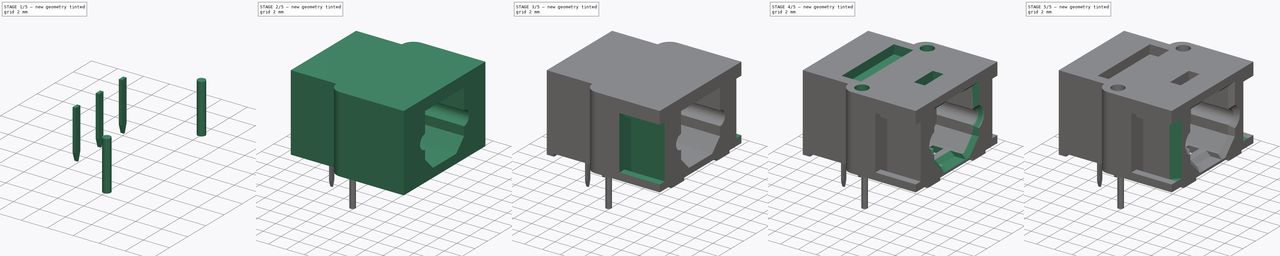
[diagram: build sequence overview — one tinted view per stage of 5, left to right]
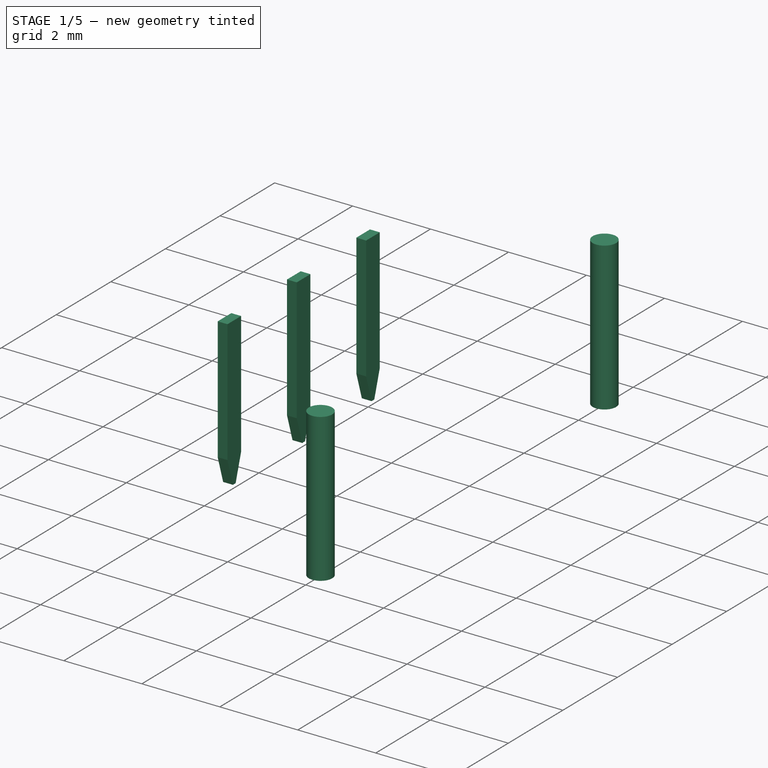
[diagram: stage 1 of 5 — iso view after this stage's code; geometry added in this stage tinted green]
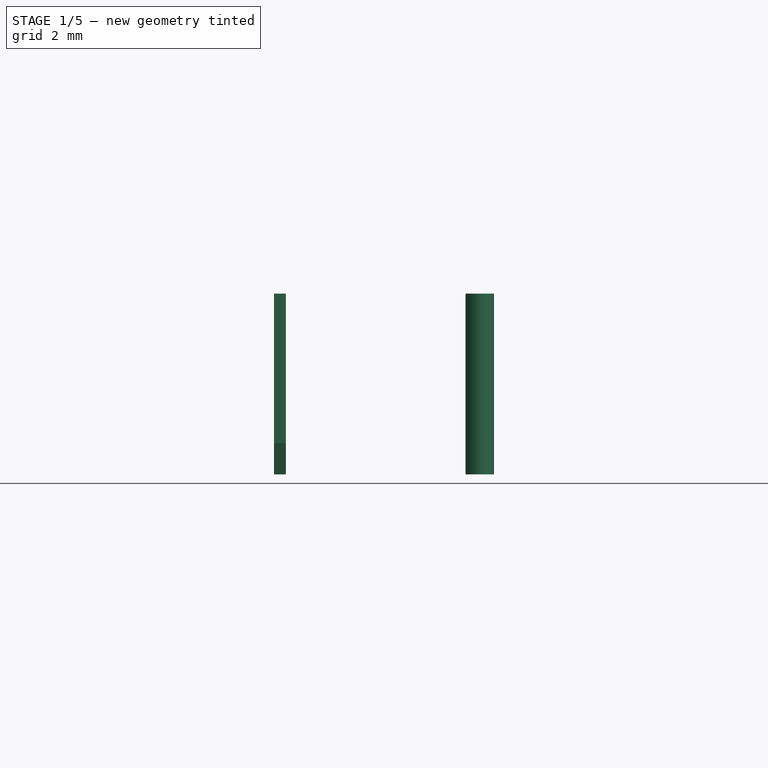
[diagram: stage 1 of 5 — front view after this stage's code; geometry added in this stage tinted green]
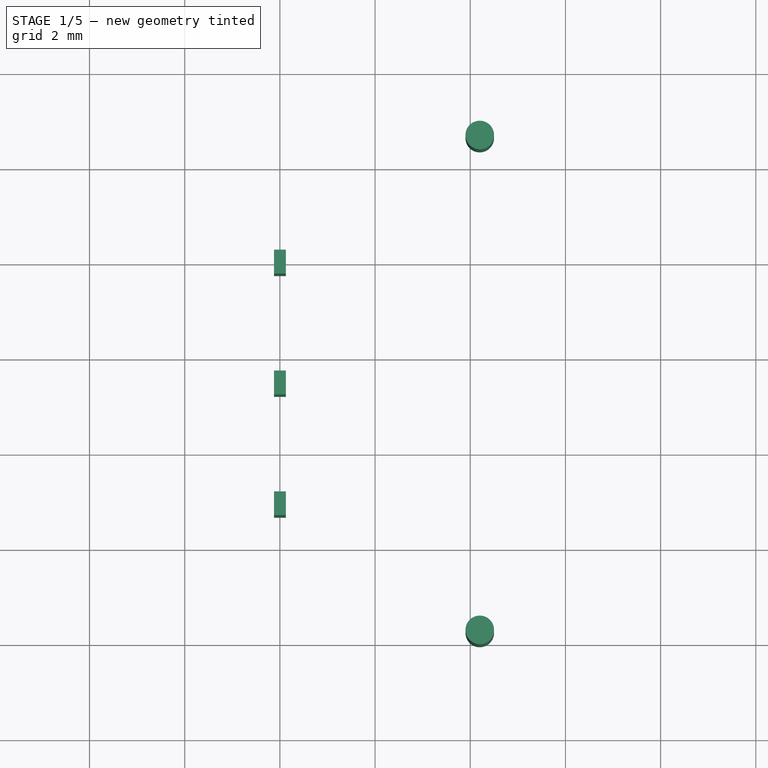
[diagram: stage 1 of 5 — top view after this stage's code; geometry added in this stage tinted green]
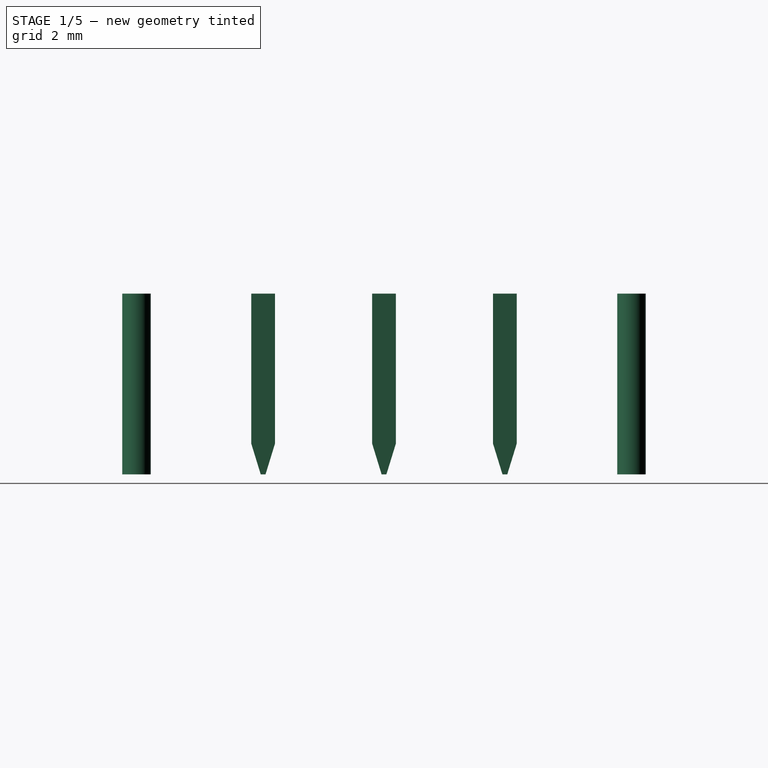
[diagram: stage 1 of 5 — right view after this stage's code; geometry added in this stage tinted green]
FCSTD DOCUMENT  (FreeCAD 1.0R38641 +468 (Git))
Label: TOTX1350-1
License: All rights reserved
objects: Sketcher::SketchObject×14, PartDesign::Pocket×10, PartDesign::Chamfer×5, PartDesign::Pad×4, PartDesign::Body×3, PartDesign::Plane×2, PartDesign::Line×2, Part::FeaturePython×2, Spreadsheet::Sheet×1, Part::Compound×1
note: 95 computed .brp shape members not serialized (recipe doc carries the construction recipe); baked Part::Feature solids carry a one-line shape summary decoded from their .brp

FEATURE [PartDesign::Body] Body
  AllowCompound = false
  Group = -> [DatumPlane,DatumPlane001,DatumLine,DatumLine001,Sketch001,Pad,Sketch002,Pocket,Sketch,Pad001,Sketch003,Pocket001,Sketch005,Pocket002,Sketch006,Pocket003,Sketch007,Pocket004,Sketch008,Pocket005,Sketch009,Pocket006,Sketch010,Pocket007,Sketch011,Pocket008,Sketch015,Pocket009,Chamfer,Chamfer001,Chamfer002,Chamfer003,Chamfer004]
  Origin = -> Origin
  Tip = -> Chamfer004
FEATURE [Sketcher::SketchObject] Sketch016
  ArcFitTolerance = 0
  AttachmentSupport = -> [YZ_Plane001]
  FullyConstrained = true
  MakeInternals = false
  MapMode = 2
  Placement = pos=(0,0,0) rot=(0.57735,0.57735,0.57735;2.0944rad)
  expr: Constraints[14] = <<Master>>.standoff
  sketch-geometry (7):
    g0: LineSegment StartX=-0.25 StartY=0.3 StartZ=0 EndX=-0.25 EndY=-2.85 EndZ=0
    g1: LineSegment StartX=-0.25 StartY=-2.85 StartZ=0 EndX=-0.05 EndY=-3.5 EndZ=0
    g2: LineSegment StartX=-0.05 StartY=-3.5 StartZ=0 EndX=0.05 EndY=-3.5 EndZ=0
    g3: LineSegment StartX=0.05 StartY=-3.5 StartZ=0 EndX=0.25 EndY=-2.85 EndZ=0
    g4: LineSegment StartX=0.25 StartY=-2.85 StartZ=0 EndX=0.25 EndY=0.3 EndZ=0
    g5: LineSegment StartX=0.25 StartY=0.3 StartZ=0 EndX=-0.25 EndY=0.3 EndZ=0
    g6: LineSegment [constr] StartX=-0.25 StartY=-2.85 StartZ=0 EndX=0.25 EndY=-2.85 EndZ=0
  constraints (19):
    c: Vertical(g0)
    c: Coincident(g0,g1)
    c: Coincident(g2,g3)
    c: Coincident(g3,g4)
    c: Vertical(g4)
    c: Coincident(g4,g5)
    c: Coincident(g5,g0)
    c: Coincident(g2,g1)
    c: Horizontal(g2)
    c: Equal(g3,g1)
    c: Symmetric(g4,g0,g-2)
    c: Coincident(g6,g0)
    c: Coincident(g6,g3)
    c: Horizontal(g6)
    c: DistanceY(g-1,g4) = 0.3
    c: DistanceY(g2,g-1) = 3.5
    c: DistanceX(g5,g5) = 0.5
    c: DistanceY(g2,g3) = 0.65
    c: DistanceX(g0,g1) = 0.2
FEATURE [PartDesign::Pad] Pad002
  Direction = (1,0,0)
  Length = 0.25
  Length2 = 10
  Midplane = true
  Placement = pos=(0,0,0) rot=(1,1,1;2.0944rad)
  Profile = -> Sketch016
  ReferenceAxis = -> Sketch016 [N_Axis]
  Suppressed = false
  Type = 0
FEATURE [PartDesign::Body] Body001
  AllowCompound = false
  Group = -> [Sketch016,Pad002]
  Origin = -> Origin001
  Tip = -> Pad002
FEATURE [Sketcher::SketchObject] Sketch017
  ArcFitTolerance = 0
  AttachmentSupport = -> [XY_Plane002]
  FullyConstrained = true
  MakeInternals = false
  MapMode = 5
  sketch-geometry (1):
    g0: Circle CenterX=0 CenterY=0 CenterZ=0 NormalX=0 NormalY=0 NormalZ=1 AngleXU=0 Radius=0.3
  constraints (2):
    c: Coincident(g0,g-1)
    c: Diameter(g0) = 0.6
FEATURE [PartDesign::Pad] Pad003
  Direction = (0,0,1)
  Length = 0.3
  Length2 = 3.5
  Profile = -> Sketch017
  ReferenceAxis = -> Sketch017 [N_Axis]
  Suppressed = false
  Type = 4
  expr: Length = <<Master>>.standoff
FEATURE [PartDesign::Body] Body002
  AllowCompound = false
  Group = -> [Sketch017,Pad003]
  Origin = -> Origin002
  Tip = -> Pad003
FEATURE [Part::FeaturePython] Array  # Draft array (typed FeaturePython)
  Angle = 360
  ArrayType = 0
  Axis = (0,0,1)
  Base = -> Body001
  Center = (0,0,0)
  Count = 3
  Fuse = false
  IntervalAxis = (0,0,0)
  IntervalX = (100,0,0)
  IntervalY = (0,-2.54,0)
  IntervalZ = (0,0,100)
  NumberCircles = 3
  NumberPolar = 5
  NumberX = 1
  NumberY = 3
  NumberZ = 1
  RadialDistance = 50
  Symmetry = 1
  TangentialDistance = 25
  expr: .IntervalY.y = -<<Master>>.pin_pitch
FEATURE [Part::FeaturePython] Array001  # Draft array (typed FeaturePython)
  Angle = 360
  ArrayType = 0
  Axis = (0,0,1)
  Base = -> Body002
  Center = (0,0,0)
  Count = 2
  Fuse = false
  IntervalAxis = (0,0,0)
  IntervalX = (100,0,0)
  IntervalY = (0,-10.4,0)
  IntervalZ = (0,0,100)
  NumberCircles = 3
  NumberPolar = 5
  NumberX = 1
  NumberY = 2
  NumberZ = 1
  Placement = pos=(4.2,2.66,0) rot=(0,0,1;0rad)
  RadialDistance = 50
  Symmetry = 1
  TangentialDistance = 25
  expr: .IntervalY.y = -<<Master>>.width_back
  expr: .Placement.Base.y = -<<Master>>.center_offset + <<Master>>.width_back / 2
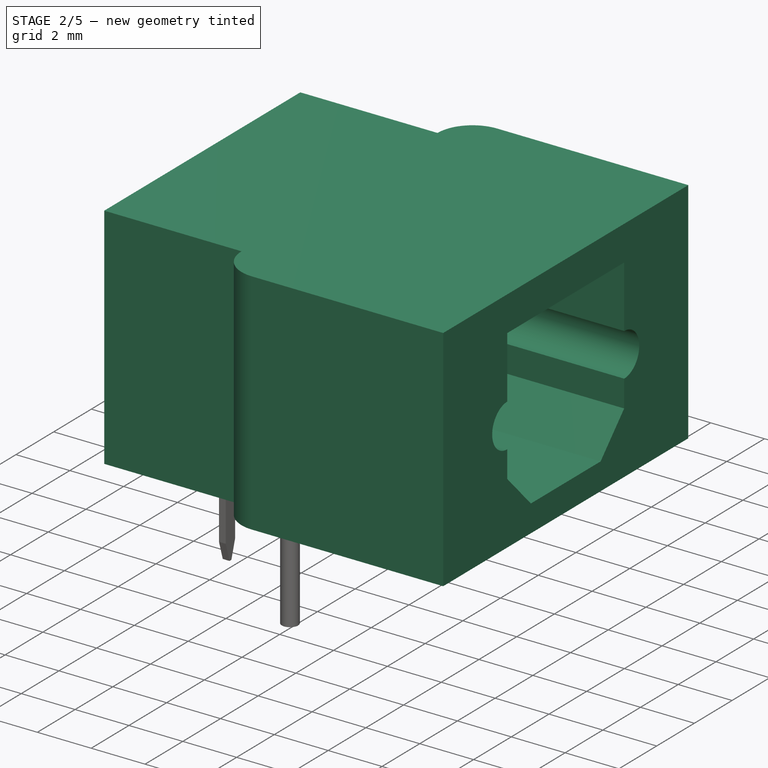
[diagram: stage 2 of 5 — iso view after this stage's code; geometry added in this stage tinted green]
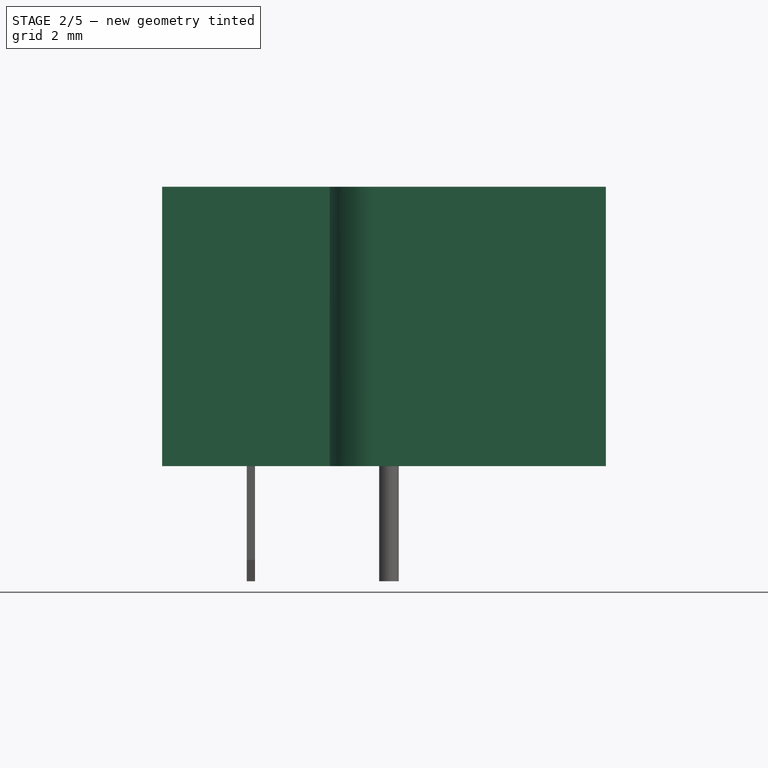
[diagram: stage 2 of 5 — front view after this stage's code; geometry added in this stage tinted green]
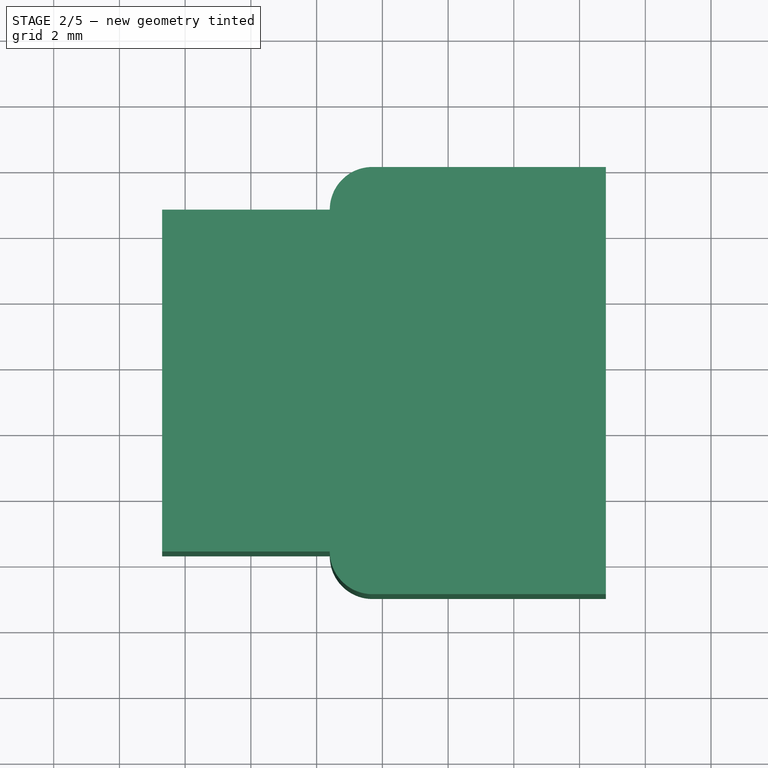
[diagram: stage 2 of 5 — top view after this stage's code; geometry added in this stage tinted green]
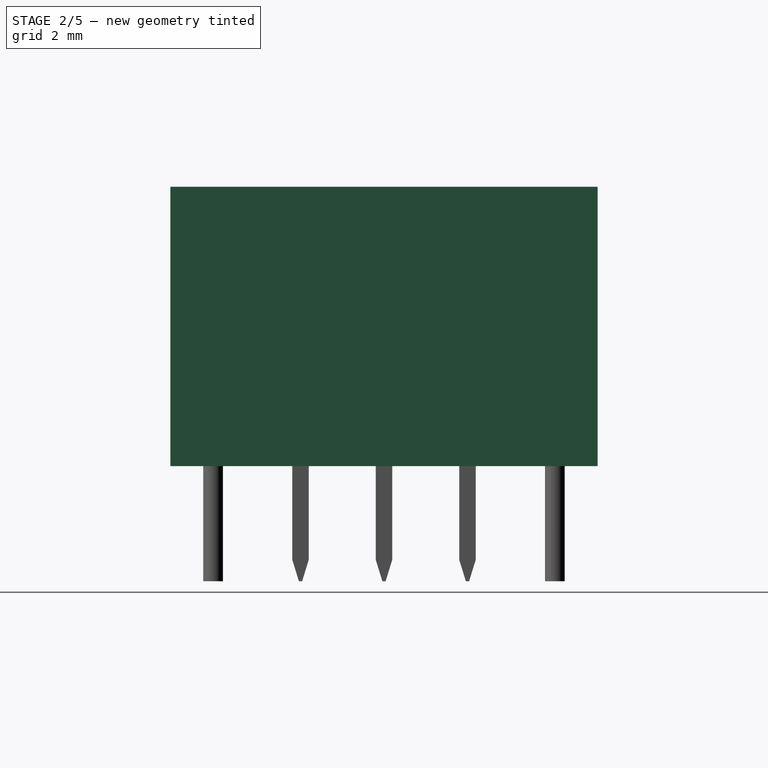
[diagram: stage 2 of 5 — right view after this stage's code; geometry added in this stage tinted green]
FEATURE [Spreadsheet::Sheet] Spreadsheet  label="Master"
  cells = A1='Constants; A2='length; B2(length)==13.5 mm; D2='Total length of part; A3='width front; B3(width_front)==13 mm; D3='Width of front part; A4='length back; B4(length_back)==5.1 mm; D4='Length of back section of part; A5='width back; B5(width_back)==10.4 mm; D5='Width of rear part; A6='height; B6(height)==8.5 mm; D6='Height of housing; A7='sandoff; B7(standoff)==0.3 mm; D7='Pin offset from front edge; A8='pin pitch; B8(pin_pitch)==2.54 mm; D8='Pin pitch; A10='Calculated; A11='center; B11(center_h)==(height - standoff) / 2; C11(center_offset)==pin_pitch; D11='Center of axis of front features; A12='offset front/back; B12(offset_front)==10.8 mm; C12(offset_back)==length - offset_front; D12='Offset to front and back relitive to origin
FEATURE [PartDesign::Plane] DatumPlane  label="DatumPlane_front"
  AttachmentOffset = pos=(0,0,10.8) rot=(0,0,1;0rad)
  AttachmentSupport = -> [YZ_Plane]
  Length = 60
  MapMode = 5
  Placement = pos=(10.8,0,0) rot=(0.57735,0.57735,0.57735;2.0944rad)
  ResizeMode = 0
  Width = 60
  expr: .AttachmentOffset.Base.z = <<Master>>.offset_front
FEATURE [PartDesign::Plane] DatumPlane001  label="DatumPlane_top"
  AttachmentOffset = pos=(0,0,8.5) rot=(0,0,1;0rad)
  AttachmentSupport = -> [XY_Plane]
  Length = 60
  MapMode = 5
  Placement = pos=(0,0,8.5) rot=(0,0,1;0rad)
  ResizeMode = 0
  Width = 60
  expr: .AttachmentOffset.Base.z = <<Master>>.height
FEATURE [PartDesign::Line] DatumLine
  AttacherType = Attacher::AttachEngineLine
  AttachmentOffset = pos=(-2.54,4.1,0) rot=(0,0,1;0rad)
  AttachmentSupport = -> [X_Axis]
  Length = 20
  MapMode = 29
  Placement = pos=(0,-2.54,4.1) rot=(0.57735,0.57735,0.57735;2.0944rad)
  ResizeMode = 0
  expr: .AttachmentOffset.Base.x = -<<Master>>.center_offset
  expr: .AttachmentOffset.Base.y = <<Master>>.center_h
FEATURE [PartDesign::Line] DatumLine001
  AttacherType = Attacher::AttachEngineLine
  AttachmentOffset = pos=(4.05,-2.54,0) rot=(0,0,1;0rad)
  AttachmentSupport = -> [Z_Axis]
  Length = 20
  MapMode = 29
  Placement = pos=(4.05,-2.54,0) rot=(0,0,1;0rad)
  ResizeMode = 0
  expr: .AttachmentOffset.Base.x = <<Master>>.length / 2 - <<Master>>.offset_back
  expr: .AttachmentOffset.Base.y = -<<Master>>.center_offset
FEATURE [Sketcher::SketchObject] Sketch001
  ArcFitTolerance = 0
  AttachmentSupport = -> [XY_Plane]
  ExternalGeometry = -> [DatumLine001]
  FullyConstrained = true
  MakeInternals = false
  MapMode = 5
  expr: Constraints[21] = <<Master>>.length
  expr: Constraints[22] = <<Master>>.width_front
  expr: Constraints[23] = <<Master>>.width_back
  expr: Constraints[24] = <<Master>>.length_back
  sketch-geometry (12):
    g0: LineSegment StartX=-2.7 StartY=2.66 StartZ=0 EndX=-2.7 EndY=-7.74 EndZ=0
    g1: LineSegment StartX=-2.7 StartY=-7.74 StartZ=0 EndX=2.4 EndY=-7.74 EndZ=0
    g2: LineSegment StartX=3.7 StartY=-9.04 StartZ=0 EndX=10.8 EndY=-9.04 EndZ=0
    g3: LineSegment StartX=10.8 StartY=-9.04 StartZ=0 EndX=10.8 EndY=3.96 EndZ=0
    g4: LineSegment StartX=10.8 StartY=3.96 StartZ=0 EndX=3.7 EndY=3.96 EndZ=0
    g5: LineSegment StartX=2.4 StartY=2.66 StartZ=0 EndX=-2.7 EndY=2.66 EndZ=0
    g6: ArcOfCircle CenterX=3.7 CenterY=2.66 CenterZ=0 NormalX=0 NormalY=0 NormalZ=1 AngleXU=0 Radius=1.3 StartAngle=1.5708 EndAngle=3.14159
    g7: ArcOfCircle CenterX=3.7 CenterY=-7.74 CenterZ=0 NormalX=0 NormalY=0 NormalZ=1 AngleXU=0 Radius=1.3 StartAngle=3.14159 EndAngle=4.71239
    g8: LineSegment [constr] StartX=2.4 StartY=2.66 StartZ=0 EndX=3.7 EndY=2.66 EndZ=0
    g9: LineSegment [constr] StartX=3.7 StartY=-7.74 StartZ=0 EndX=2.4 EndY=-7.74 EndZ=0
    g10: LineSegment [constr] StartX=4.05 StartY=-2.54 StartZ=0 EndX=10.8 EndY=-2.54 EndZ=0
    g11: LineSegment [constr] StartX=4.05 StartY=-2.54 StartZ=0 EndX=-2.7 EndY=-2.54 EndZ=0
  constraints (33):
    c: Vertical(g0)
    c: Coincident(g0,g1)
    c: Coincident(g2,g3)
    c: Vertical(g3)
    c: Coincident(g3,g4)
    c: Horizontal(g4)
    c: Coincident(g5,g0)
    c: Horizontal(g5)
    c: Horizontal(g1)
    c: Horizontal(g2)
    c: Coincident(g6,g5)
    c: Coincident(g7,g1)
    c: Coincident(g8,g5)
    c: Coincident(g8,g6)
    c: Coincident(g9,g7)
    c: Coincident(g9,g1)
    c: Horizontal(g8)
    c: Horizontal(g9)
    c: Tangent(g7,g2) = -1.5708
    c: Tangent(g6,g4) = -1.5708
    c: Equal(g7,g6)
    c: DistanceX(g0,g3) = 13.5
    c: DistanceY(g3,g3) = 13
    c: DistanceY(g0,g0) = 10.4
    c: DistanceX(g5,g5) = 5.1
    c: Equal(g5,g1)
    c: Coincident(g10,g-3)
    c: Horizontal(g10)
    c: Symmetric(g3,g2,g10)
    c: Coincident(g11,g10)
    c: PointOnObject(g11,g0)
    c: Horizontal(g11)
    c: Equal(g11,g10)
FEATURE [PartDesign::Pad] Pad
  Direction = (0,0,1)
  Length = 8.5
  Length2 = 10
  Profile = -> Sketch001
  ReferenceAxis = -> Sketch001 [N_Axis]
  Suppressed = false
  Type = 0
  expr: Length = <<Master>>.height
FEATURE [Sketcher::SketchObject] Sketch002
  ArcFitTolerance = 0
  AttachmentSupport = -> [DatumPlane]
  ExternalGeometry = -> [DatumLine]
  FullyConstrained = true
  MakeInternals = false
  MapMode = 2
  Placement = pos=(10.8,0,0) rot=(0.57735,0.57735,0.57735;2.0944rad)
  sketch-geometry (14):
    g0: LineSegment StartX=-5.64 StartY=7.2 StartZ=0 EndX=0.56 EndY=7.2 EndZ=0
    g1: LineSegment StartX=0.56 StartY=7.2 StartZ=0 EndX=0.56 EndY=4.9 EndZ=0
    g2: LineSegment StartX=0.56 StartY=2.3 StartZ=0 EndX=-0.69 EndY=1 EndZ=0
    g3: LineSegment StartX=-0.69 StartY=1 StartZ=0 EndX=-4.39 EndY=1 EndZ=0
    g4: LineSegment StartX=-4.39 StartY=1 StartZ=0 EndX=-5.64 EndY=2.3 EndZ=0
    g5: LineSegment StartX=-5.64 StartY=2.3 StartZ=0 EndX=-5.64 EndY=3.3 EndZ=0
    g6: ArcOfCircle CenterX=-5.64 CenterY=4.1 CenterZ=0 NormalX=0 NormalY=0 NormalZ=1 AngleXU=0 Radius=0.8 StartAngle=1.5708 EndAngle=4.71239
    g7: ArcOfCircle CenterX=0.56 CenterY=4.1 CenterZ=0 NormalX=0 NormalY=0 NormalZ=1 AngleXU=0 Radius=0.8 StartAngle=4.71239 EndAngle=7.85398
    g8: LineSegment StartX=-5.64 StartY=4.9 StartZ=0 EndX=-5.64 EndY=7.2 EndZ=0
    g9: LineSegment StartX=0.56 StartY=3.3 StartZ=0 EndX=0.56 EndY=2.3 EndZ=0
    g10: LineSegment [constr] StartX=-5.64 StartY=4.1 StartZ=0 EndX=0.56 EndY=4.1 EndZ=0
    g11: LineSegment [constr] StartX=-5.64 StartY=4.9 StartZ=0 EndX=-5.64 EndY=3.3 EndZ=0
    g12: LineSegment [constr] StartX=0.56 StartY=4.9 StartZ=0 EndX=0.56 EndY=3.3 EndZ=0
    g13: LineSegment [constr] StartX=-2.54 StartY=7.2 StartZ=0 EndX=-2.54 EndY=1 EndZ=0
  constraints (40):
    c: Horizontal(g0)
    c: Vertical(g1)
    c: Coincident(g9,g2)
    c: Coincident(g2,g3)
    c: Horizontal(g3)
    c: Coincident(g3,g4)
    c: Coincident(g4,g5)
    c: Coincident(g8,g0)
    c: Vertical(g5)
    c: Coincident(g5,g6)
    c: Coincident(g8,g6)
    c: Coincident(g9,g7)
    c: Vertical(g9)
    c: Equal(g6,g7)
    c: Coincident(g10,g6)
    c: Coincident(g10,g7)
    c: Vertical(g8)
    c: Coincident(g1,g7)
    c: Coincident(g11,g6)
    c: Coincident(g11,g5)
    c: Vertical(g11)
    c: PointOnObject(g6,g11)
    c: Coincident(g12,g1)
    c: Coincident(g12,g7)
    c: Vertical(g12)
    c: PointOnObject(g7,g12)
    c: Equal(g8,g1)
    c: Equal(g5,g9)
    c: Equal(g4,g2)
    c: DistanceX(g0,g0) = 6.2
    c: DistanceX(g3,g3) = 3.7
    c: DistanceY(g9,g9) = 1
    c: Coincident(g1,g0)
    c: DistanceY(g1,g1) = 2.3
    c: Symmetric(g6,g7,g-3)
    c: PointOnObject(g13,g0)
    c: PointOnObject(g13,g3)
    c: Vertical(g13)
    c: Symmetric(g13,g13,g-3)
    c: Equal(g13,g0)
FEATURE [PartDesign::Pocket] Pocket
  BaseFeature = -> Pad
  Direction = (-1,0,0)
  Length = 6.9
  Length2 = 5
  Profile = -> Sketch002
  ReferenceAxis = -> Sketch002 [N_Axis]
  Suppressed = false
  Type = 0
FEATURE [Sketcher::SketchObject] Sketch
  ArcFitTolerance = 1e-06
  AttachmentSupport = -> [YZ_Plane]
  ExternalGeometry = -> [DatumLine]
  FullyConstrained = true
  MakeInternals = false
  MapMode = 5
  Placement = pos=(0,0,0) rot=(0.57735,0.57735,0.57735;2.0944rad)
  sketch-geometry (10):
    g0: LineSegment StartX=-4.64 StartY=6.2 StartZ=0 EndX=-0.44 EndY=6.2 EndZ=0
    g1: LineSegment StartX=-0.44 StartY=6.2 StartZ=0 EndX=-0.44 EndY=3.1 EndZ=0
    g2: LineSegment StartX=-0.44 StartY=3.1 StartZ=0 EndX=-1.54 EndY=2 EndZ=0
    g3: LineSegment StartX=-1.54 StartY=2 StartZ=0 EndX=-3.54 EndY=2 EndZ=0
    g4: LineSegment StartX=-3.54 StartY=2 StartZ=0 EndX=-4.64 EndY=3.1 EndZ=0
    g5: LineSegment StartX=-4.64 StartY=3.1 StartZ=0 EndX=-4.64 EndY=6.2 EndZ=0
    g6: LineSegment [constr] StartX=-4.64 StartY=3.1 StartZ=0 EndX=-4.64 EndY=2 EndZ=0
    g7: LineSegment [constr] StartX=-4.64 StartY=2 StartZ=0 EndX=-3.54 EndY=2 EndZ=0
    g8: LineSegment [constr] StartX=-1.54 StartY=2 StartZ=0 EndX=-0.44 EndY=2 EndZ=0
    g9: LineSegment [constr] StartX=-0.44 StartY=3.1 StartZ=0 EndX=-0.44 EndY=2 EndZ=0
  constraints (27):
    c: Horizontal(g0)
    c: Coincident(g0,g1)
    c: Coincident(g1,g2)
    c: Coincident(g2,g3)
    c: Horizontal(g3)
    c: Coincident(g3,g4)
    c: Coincident(g4,g5)
    c: Coincident(g5,g0)
    c: Vertical(g5)
    c: Vertical(g1)
    c: Coincident(g6,g4)
    c: Vertical(g6)
    c: Coincident(g7,g6)
    c: Horizontal(g7)
    c: Coincident(g8,g2)
    c: Coincident(g9,g1)
    c: Coincident(g9,g8)
    c: Vertical(g9)
    c: Coincident(g7,g3)
    c: Horizontal(g8)
    c: DistanceX(g0,g0) = 4.2
    c: DistanceY(g1,g1) = 3.1
    c: DistanceX(g3,g3) = 2
    c: Equal(g1,g5)
    c: Equal(g4,g2)
    c: DistanceY(g6,g0) = 4.2
    c: Symmetric(g6,g0,g-3)
FEATURE [PartDesign::Pad] Pad001
  BaseFeature = -> Pocket
  Direction = (1,0,0)
  Length = 7.1
  Length2 = 10
  Profile = -> Sketch
  ReferenceAxis = -> Sketch [N_Axis]
  Suppressed = false
  Type = 0
FEATURE [Sketcher::SketchObject] Sketch003
  ArcFitTolerance = 1e-06
  AttachmentSupport = -> [DatumPlane]
  ExternalGeometry = -> [DatumLine]
  FullyConstrained = true
  MakeInternals = false
  MapMode = 5
  Placement = pos=(10.8,0,0) rot=(0.57735,0.57735,0.57735;2.0944rad)
  sketch-geometry (1):
    g0: Circle CenterX=-2.54 CenterY=4.1 CenterZ=0 NormalX=0 NormalY=0 NormalZ=1 AngleXU=0 Radius=1.25
  constraints (2):
    c: Coincident(g0,g-3)
    c: Radius(g0) = 1.25
FEATURE [PartDesign::Pocket] Pocket001
  BaseFeature = -> Pad001
  Direction = (-1,0,0)
  Length = 12.2
  Length2 = 5
  Profile = -> Sketch003
  ReferenceAxis = -> Sketch003 [N_Axis]
  Suppressed = false
  Type = 0
FEATURE [Part::Compound] Compound  label="Pins"
  Links = -> [Array,Array001]
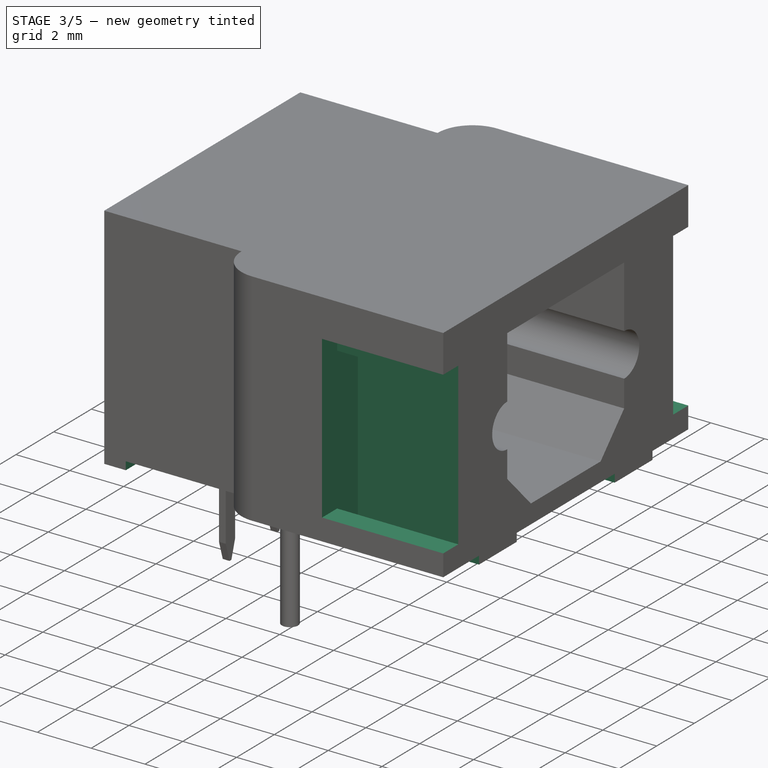
[diagram: stage 3 of 5 — iso view after this stage's code; geometry added in this stage tinted green]
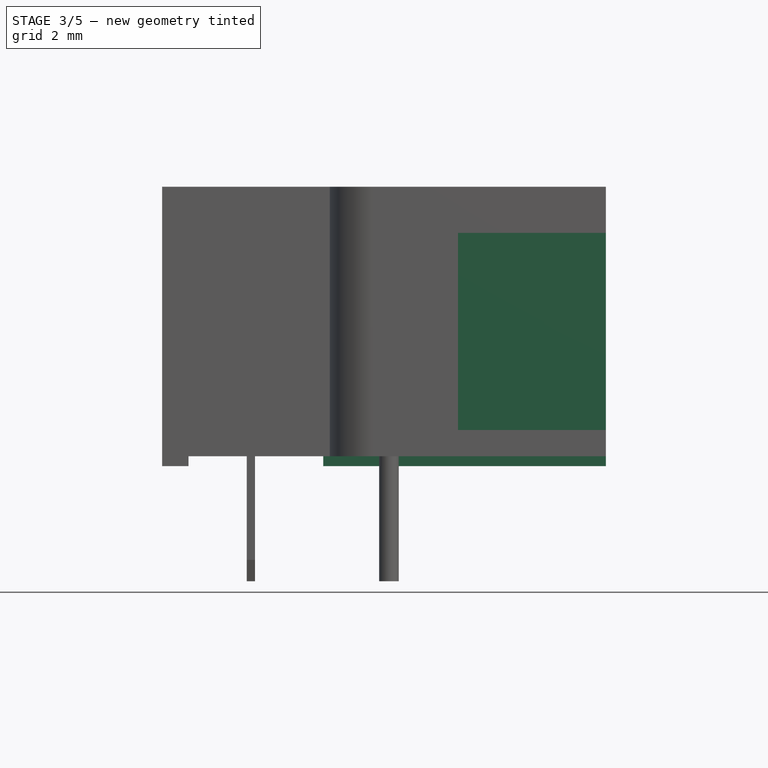
[diagram: stage 3 of 5 — front view after this stage's code; geometry added in this stage tinted green]
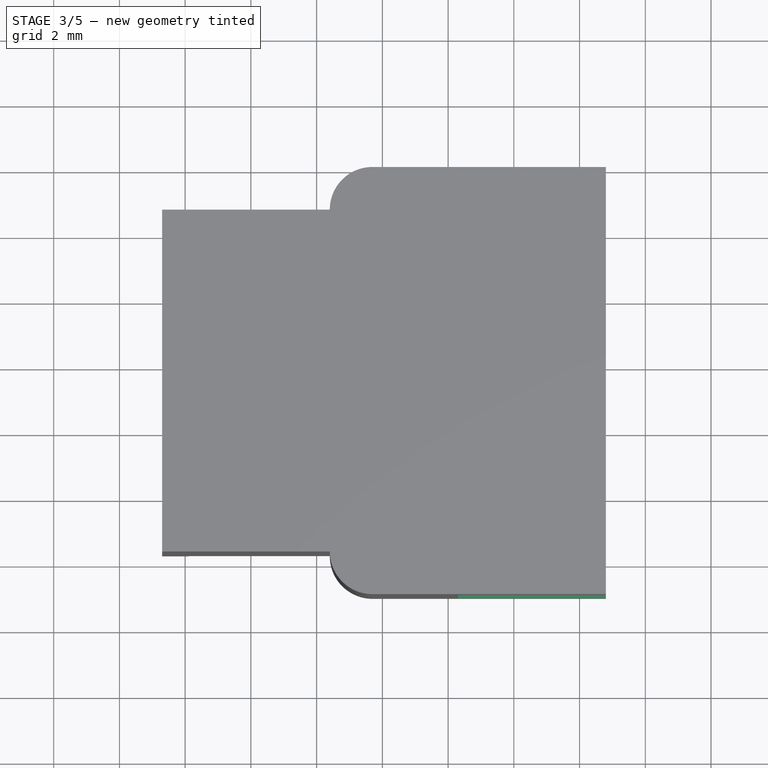
[diagram: stage 3 of 5 — top view after this stage's code; geometry added in this stage tinted green]
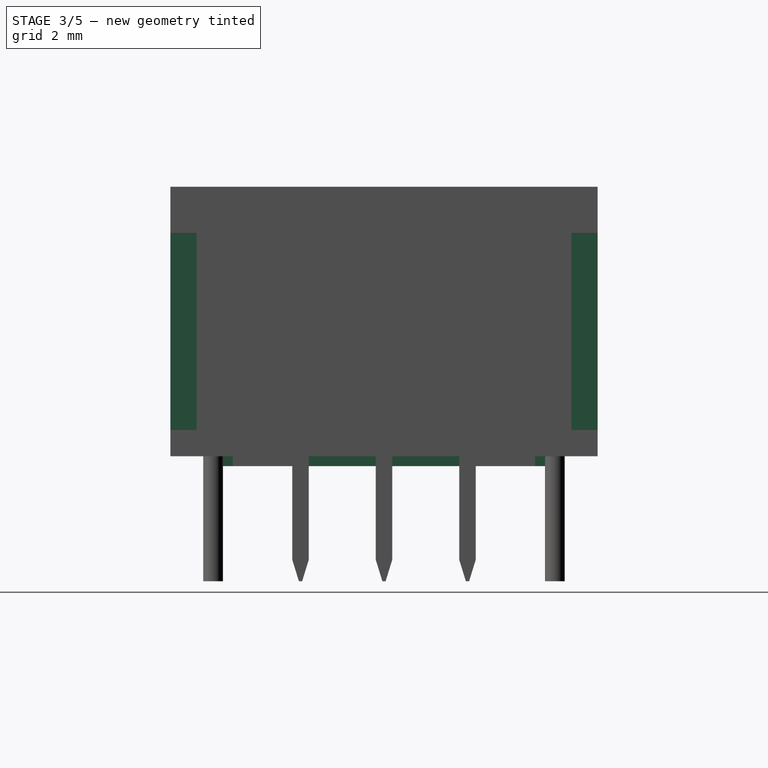
[diagram: stage 3 of 5 — right view after this stage's code; geometry added in this stage tinted green]
FEATURE [Sketcher::SketchObject] Sketch005
  ArcFitTolerance = 0
  AttachmentSupport = -> [DatumPlane]
  ExternalGeometry = -> [DatumLine]
  FullyConstrained = true
  MakeInternals = false
  MapMode = 5
  Placement = pos=(10.8,0,0) rot=(0.57735,0.57735,0.57735;2.0944rad)
  expr: Constraints[21] = <<Master>>.width_front
  sketch-geometry (9):
    g0: LineSegment StartX=-9.04 StartY=7.1 StartZ=0 EndX=-8.24 EndY=7.1 EndZ=0
    g1: LineSegment StartX=-8.24 StartY=7.1 StartZ=0 EndX=-8.24 EndY=1.1 EndZ=0
    g2: LineSegment StartX=-8.24 StartY=1.1 StartZ=0 EndX=-9.04 EndY=1.1 EndZ=0
    g3: LineSegment StartX=-9.04 StartY=1.1 StartZ=0 EndX=-9.04 EndY=7.1 EndZ=0
    g4: LineSegment StartX=3.16 StartY=7.1 StartZ=0 EndX=3.96 EndY=7.1 EndZ=0
    g5: LineSegment StartX=3.96 StartY=7.1 StartZ=0 EndX=3.96 EndY=1.1 EndZ=0
    g6: LineSegment StartX=3.96 StartY=1.1 StartZ=0 EndX=3.16 EndY=1.1 EndZ=0
    g7: LineSegment StartX=3.16 StartY=1.1 StartZ=0 EndX=3.16 EndY=7.1 EndZ=0
    g8: LineSegment [constr] StartX=-8.24 StartY=7.1 StartZ=0 EndX=3.16 EndY=7.1 EndZ=0
  constraints (25):
    c: Coincident(g0,g1)
    c: Coincident(g1,g2)
    c: Coincident(g2,g3)
    c: Coincident(g3,g0)
    c: Horizontal(g0)
    c: Horizontal(g2)
    c: Vertical(g1)
    c: Vertical(g3)
    c: Coincident(g4,g5)
    c: Coincident(g5,g6)
    c: Coincident(g6,g7)
    c: Coincident(g7,g4)
    c: Horizontal(g4)
    c: Horizontal(g6)
    c: Vertical(g5)
    c: Vertical(g7)
    c: Equal(g0,g4)
    c: Equal(g1,g7)
    c: DistanceY(g3,g3) = 6
    c: Distance(g0,g0) = 0.8
    c: Symmetric(g1,g4,g-3)
    c: DistanceX(g0,g4) = 13
    c: Coincident(g8,g0)
    c: Coincident(g8,g4)
    c: Horizontal(g8)
FEATURE [PartDesign::Pocket] Pocket002
  BaseFeature = -> Pocket001
  Direction = (-1,0,0)
  Length = 4.5
  Length2 = 5
  Profile = -> Sketch005
  ReferenceAxis = -> Sketch005 [N_Axis]
  Suppressed = false
  Type = 0
FEATURE [Sketcher::SketchObject] Sketch006
  ArcFitTolerance = 0
  AttachmentSupport = -> [XY_Plane]
  ExternalGeometry = -> [DatumLine]
  FullyConstrained = true
  MakeInternals = false
  MapMode = 5
  expr: Constraints[28] = <<Master>>.width_front
  expr: Constraints[30] = <<Master>>.offset_front - 1.9 mm
  sketch-geometry (11):
    g0: LineSegment StartX=6.3 StartY=3.16 StartZ=0 EndX=6.3 EndY=2.06 EndZ=0
    g1: LineSegment StartX=6.3 StartY=2.06 StartZ=0 EndX=8.9 EndY=2.06 EndZ=0
    g2: LineSegment StartX=8.9 StartY=2.06 StartZ=0 EndX=8.9 EndY=3.16 EndZ=0
    g3: LineSegment StartX=8.9 StartY=3.16 StartZ=0 EndX=6.3 EndY=3.16 EndZ=0
    g4: LineSegment StartX=6.3 StartY=-7.14 StartZ=0 EndX=6.3 EndY=-8.24 EndZ=0
    g5: LineSegment StartX=6.3 StartY=-8.24 StartZ=0 EndX=8.9 EndY=-8.24 EndZ=0
    g6: LineSegment StartX=8.9 StartY=-8.24 StartZ=0 EndX=8.9 EndY=-7.14 EndZ=0
    g7: LineSegment StartX=8.9 StartY=-7.14 StartZ=0 EndX=6.3 EndY=-7.14 EndZ=0
    g8: LineSegment [constr] StartX=8.9 StartY=2.06 StartZ=0 EndX=8.9 EndY=-7.14 EndZ=0
    g9: LineSegment [constr] StartX=8.9 StartY=-8.24 StartZ=0 EndX=8.9 EndY=-9.04 EndZ=0
    g10: LineSegment [constr] StartX=8.9 StartY=3.16 StartZ=0 EndX=8.9 EndY=3.96 EndZ=0
  constraints (31):
    c: Coincident(g0,g1)
    c: Coincident(g1,g2)
    c: Coincident(g2,g3)
    c: Coincident(g3,g0)
    c: Vertical(g0)
    c: Vertical(g2)
    c: Horizontal(g1)
    c: Horizontal(g3)
    c: Coincident(g4,g5)
    c: Coincident(g5,g6)
    c: Coincident(g6,g7)
    c: Coincident(g7,g4)
    c: Vertical(g4)
    c: Vertical(g6)
    c: Horizontal(g5)
    c: Horizontal(g7)
    c: Equal(g7,g3)
    c: Equal(g2,g6)
    c: Coincident(g8,g1)
    c: Coincident(g8,g6)
    c: Coincident(g9,g5)
    c: Vertical(g9)
    c: Coincident(g10,g2)
    c: Vertical(g10)
    c: Equal(g10,g9)
    c: Distance(g4,g4) = 1.1
    c: DistanceX(g4,g9) = 2.6
    c: Symmetric(g1,g6,g-3)
    c: DistanceY(g9,g10) = 13
    c: Distance(g9,g9) = 0.8
    c: DistanceX(g-1,g10) = 8.9
FEATURE [PartDesign::Pocket] Pocket003
  BaseFeature = -> Pocket002
  Direction = (0,0,-1)
  Length = 6.4
  Length2 = 5
  Profile = -> Sketch006
  ReferenceAxis = -> Sketch006 [N_Axis]
  Reversed = true
  Suppressed = false
  Type = 0
FEATURE [Sketcher::SketchObject] Sketch007
  ArcFitTolerance = 0
  AttachmentSupport = -> [XZ_Plane]
  FullyConstrained = true
  MakeInternals = false
  MapMode = 5
  Placement = pos=(0,0,0) rot=(1,0,0;1.5708rad)
  expr: Constraints[11] = <<Master>>.offset_back - 0.8 mm
  expr: Constraints[9] = <<Master>>.standoff
  sketch-geometry (4):
    g0: LineSegment StartX=-1.9 StartY=0 StartZ=0 EndX=2.2 EndY=0 EndZ=0
    g1: LineSegment StartX=2.2 StartY=0 StartZ=0 EndX=2.2 EndY=0.3 EndZ=0
    g2: LineSegment StartX=2.2 StartY=0.3 StartZ=0 EndX=-1.9 EndY=0.3 EndZ=0
    g3: LineSegment StartX=-1.9 StartY=0.3 StartZ=0 EndX=-1.9 EndY=0 EndZ=0
  constraints (12):
    c: Coincident(g0,g1)
    c: Coincident(g1,g2)
    c: Coincident(g2,g3)
    c: Coincident(g3,g0)
    c: Horizontal(g0)
    c: Horizontal(g2)
    c: Vertical(g1)
    c: Vertical(g3)
    c: DistanceX(g0,g0) = 4.1
    c: DistanceY(g1,g1) = 0.3
    c: PointOnObject(g-1,g0)
    c: DistanceX(g0,g-1) = 1.9
FEATURE [PartDesign::Pocket] Pocket004
  BaseFeature = -> Pocket003
  Direction = (0,1,-2e-16)
  Length = 5
  Length2 = 5
  Midplane = true
  Profile = -> Sketch007
  ReferenceAxis = -> Sketch007 [N_Axis]
  Suppressed = false
  Type = 1
FEATURE [Sketcher::SketchObject] Sketch008
  ArcFitTolerance = 0
  AttachmentSupport = -> [YZ_Plane]
  ExternalGeometry = -> [DatumLine]
  FullyConstrained = true
  MakeInternals = false
  MapMode = 5
  Placement = pos=(0,0,0) rot=(0.57735,0.57735,0.57735;2.0944rad)
  expr: Constraints[41] = <<Master>>.width_front
  expr: Constraints[42] = <<Master>>.standoff
  sketch-geometry (17):
    g0: LineSegment StartX=-9.04 StartY=0.3 StartZ=0 EndX=-7.14 EndY=0.3 EndZ=0
    g1: LineSegment StartX=-7.14 StartY=0.3 StartZ=0 EndX=-7.14 EndY=0 EndZ=0
    g2: LineSegment StartX=-7.14 StartY=0 StartZ=0 EndX=-9.04 EndY=0 EndZ=0
    g3: LineSegment StartX=-9.04 StartY=0 StartZ=0 EndX=-9.04 EndY=0.3 EndZ=0
    g4: LineSegment StartX=-5.14 StartY=0.3 StartZ=0 EndX=0.06 EndY=0.3 EndZ=0
    g5: LineSegment StartX=0.06 StartY=0.3 StartZ=0 EndX=0.06 EndY=0 EndZ=0
    g6: LineSegment StartX=0.06 StartY=0 StartZ=0 EndX=-5.14 EndY=0 EndZ=0
    g7: LineSegment StartX=-5.14 StartY=0 StartZ=0 EndX=-5.14 EndY=0.3 EndZ=0
    g8: LineSegment StartX=2.06 StartY=0.3 StartZ=0 EndX=3.96 EndY=0.3 EndZ=0
    g9: LineSegment StartX=3.96 StartY=0.3 StartZ=0 EndX=3.96 EndY=0 EndZ=0
    g10: LineSegment StartX=3.96 StartY=0 StartZ=0 EndX=2.06 EndY=0 EndZ=0
    g11: LineSegment StartX=2.06 StartY=0 StartZ=0 EndX=2.06 EndY=0.3 EndZ=0
    g12: LineSegment [constr] StartX=-7.14 StartY=0.3 StartZ=0 EndX=-5.14 EndY=0.3 EndZ=0
    g13: LineSegment [constr] StartX=0.06 StartY=0.3 StartZ=0 EndX=2.06 EndY=0.3 EndZ=0
    g14: LineSegment [constr] StartX=2.06 StartY=0 StartZ=0 EndX=0.06 EndY=0 EndZ=0
    g15: LineSegment [constr] StartX=-5.14 StartY=0 StartZ=0 EndX=-7.14 EndY=0 EndZ=0
    g16: LineSegment [constr] StartX=-2.54 StartY=4.1 StartZ=0 EndX=-2.54 EndY=0 EndZ=0
  constraints (46):
    c: Coincident(g0,g1)
    c: Coincident(g1,g2)
    c: Coincident(g2,g3)
    c: Coincident(g3,g0)
    c: Horizontal(g0)
    c: Horizontal(g2)
    c: Vertical(g1)
    c: Vertical(g3)
    c: Coincident(g4,g5)
    c: Coincident(g5,g6)
    c: Coincident(g6,g7)
    c: Coincident(g7,g4)
    c: Horizontal(g4)
    c: Horizontal(g6)
    c: Vertical(g5)
    c: Vertical(g7)
    c: Coincident(g8,g9)
    c: Coincident(g9,g10)
    c: Coincident(g10,g11)
    c: Coincident(g11,g8)
    c: Horizontal(g8)
    c: Horizontal(g10)
    c: Vertical(g9)
    c: Vertical(g11)
    c: PointOnObject(g9,g-1)
    c: Coincident(g12,g0)
    c: Coincident(g12,g4)
    c: Horizontal(g12)
    c: Coincident(g13,g4)
    c: Coincident(g13,g8)
    c: Horizontal(g13)
    c: Coincident(g14,g10)
    c: Coincident(g14,g5)
    c: Horizontal(g14)
    c: Coincident(g15,g6)
    c: Coincident(g15,g1)
    c: Equal(g2,g10)
    c: DistanceX(g2,g2) = 1.9
    c: Equal(g14,g15)
    c: DistanceX(g6,g6) = 5.2
    c: Horizontal(g15)
    c: DistanceX(g2,g9) = 13
    c: Distance(g3,g3) = 0.3
    c: Coincident(g16,g-3)
    c: Vertical(g16)
    c: Symmetric(g6,g5,g16)
FEATURE [PartDesign::Pocket] Pocket005
  BaseFeature = -> Pocket004
  Direction = (-1,0,0)
  Length = 5
  Length2 = 5
  Profile = -> Sketch008
  ReferenceAxis = -> Sketch008 [N_Axis]
  Reversed = true
  Suppressed = false
  Type = 1
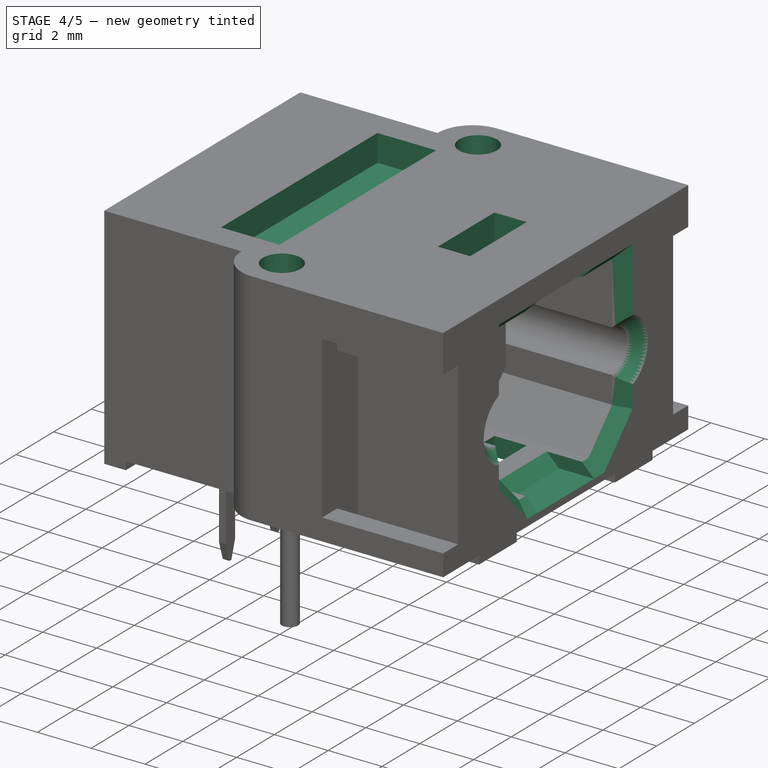
[diagram: stage 4 of 5 — iso view after this stage's code; geometry added in this stage tinted green]
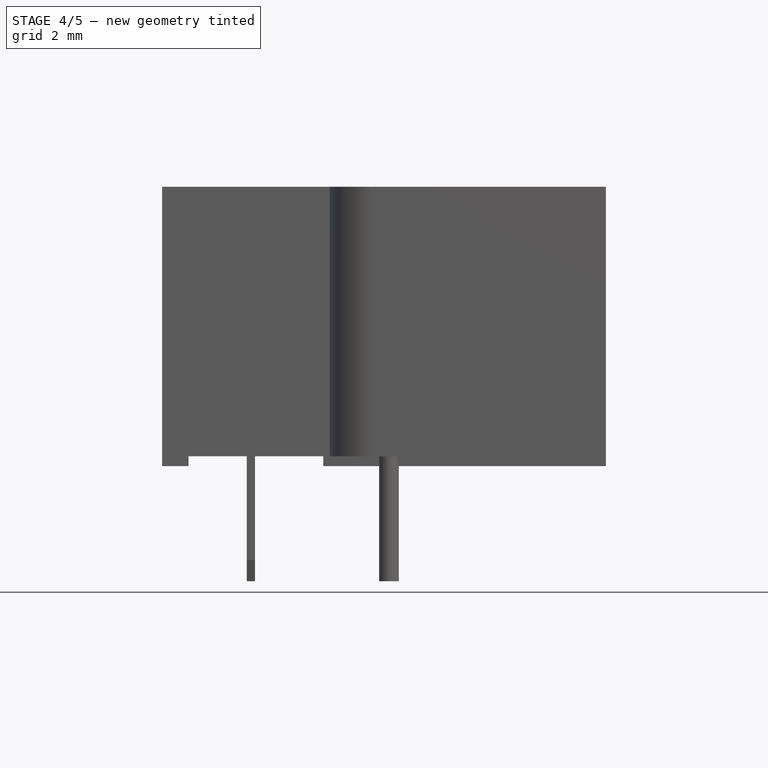
[diagram: stage 4 of 5 — front view after this stage's code; geometry added in this stage tinted green]
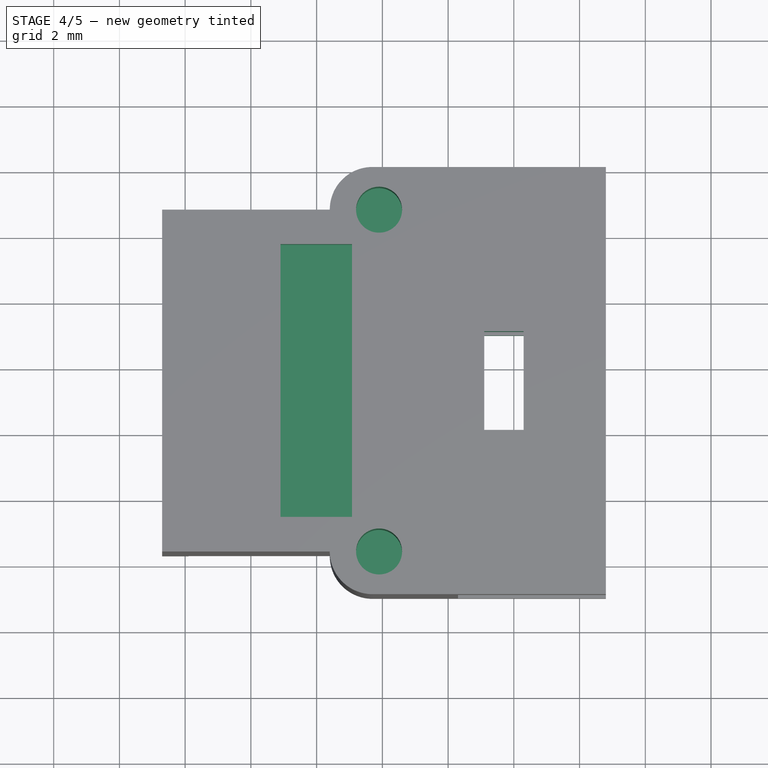
[diagram: stage 4 of 5 — top view after this stage's code; geometry added in this stage tinted green]
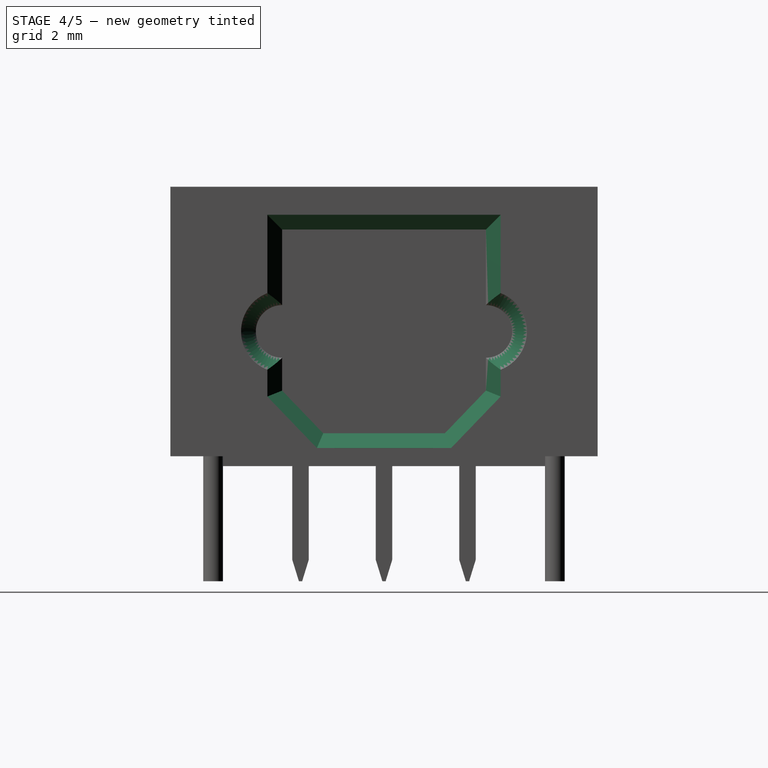
[diagram: stage 4 of 5 — right view after this stage's code; geometry added in this stage tinted green]
FEATURE [Sketcher::SketchObject] Sketch009
  ArcFitTolerance = 0
  AttachmentSupport = -> [XY_Plane]
  ExternalGeometry = -> [DatumLine]
  FullyConstrained = true
  MakeInternals = false
  MapMode = 5
  expr: Constraints[10] = <<Master>>.offset_front - 2.5 mm
  sketch-geometry (4):
    g0: LineSegment StartX=7.101 StartY=-1.04 StartZ=0 EndX=7.101 EndY=-4.04 EndZ=0
    g1: LineSegment StartX=7.101 StartY=-4.04 StartZ=0 EndX=8.3 EndY=-4.04 EndZ=0
    g2: LineSegment StartX=8.3 StartY=-4.04 StartZ=0 EndX=8.3 EndY=-1.04 EndZ=0
    g3: LineSegment StartX=8.3 StartY=-1.04 StartZ=0 EndX=7.101 EndY=-1.04 EndZ=0
  constraints (11):
    c: Coincident(g0,g1)
    c: Coincident(g1,g2)
    c: Coincident(g2,g3)
    c: Coincident(g3,g0)
    c: Vertical(g0)
    c: Horizontal(g1)
    c: Horizontal(g3)
    c: Distance(g0,g0) = 3
    c: Distance(g3,g3) = 1.199
    c: Symmetric(g2,g1,g-3)
    c: DistanceX(g-1,g2) = 8.3
FEATURE [PartDesign::Pocket] Pocket006
  BaseFeature = -> Pocket005
  Direction = (0,0,-1)
  Length = 5
  Length2 = 5
  Profile = -> Sketch009
  ReferenceAxis = -> Sketch009 [N_Axis]
  Reversed = true
  Suppressed = false
  Type = 1
FEATURE [Sketcher::SketchObject] Sketch010
  ArcFitTolerance = 0
  AttachmentSupport = -> [DatumPlane001]
  ExternalGeometry = -> [DatumLine]
  FullyConstrained = true
  MakeInternals = false
  MapMode = 5
  Placement = pos=(0,0,8.5) rot=(0,0,1;0rad)
  expr: Constraints[9] = 3.6 mm - <<Master>>.offset_back
  sketch-geometry (4):
    g0: LineSegment StartX=0.9 StartY=1.61 StartZ=0 EndX=0.9 EndY=-6.69 EndZ=0
    g1: LineSegment StartX=0.9 StartY=-6.69 StartZ=0 EndX=3.077 EndY=-6.69 EndZ=0
    g2: LineSegment StartX=3.077 StartY=-6.69 StartZ=0 EndX=3.077 EndY=1.61 EndZ=0
    g3: LineSegment StartX=3.077 StartY=1.61 StartZ=0 EndX=0.9 EndY=1.61 EndZ=0
  constraints (11):
    c: Coincident(g0,g1)
    c: Coincident(g1,g2)
    c: Coincident(g2,g3)
    c: Coincident(g3,g0)
    c: Vertical(g2)
    c: Horizontal(g1)
    c: Horizontal(g3)
    c: DistanceY(g2,g2) = 8.3
    c: Distance(g3,g3) = 2.177
    c: DistanceX(g-1,g0) = 0.9
    c: Symmetric(g0,g0,g-3)
FEATURE [PartDesign::Pocket] Pocket007
  BaseFeature = -> Pocket006
  Direction = (0,0,-1)
  Length = 1
  Length2 = 5
  Profile = -> Sketch010
  ReferenceAxis = -> Sketch010 [N_Axis]
  Suppressed = false
  Type = 0
FEATURE [Sketcher::SketchObject] Sketch011
  ArcFitTolerance = 0
  AttachmentSupport = -> [DatumPlane001]
  ExternalGeometry = -> [DatumLine]
  FullyConstrained = true
  MakeInternals = false
  MapMode = 2
  Placement = pos=(0,0,8.5) rot=(0,0,1;0rad)
  expr: Constraints[5] = 6.6 mm - <<Master>>.offset_back
  expr: Constraints[6] = <<Master>>.width_back
  sketch-geometry (3):
    g0: Circle CenterX=3.9 CenterY=2.66 CenterZ=0 NormalX=0 NormalY=0 NormalZ=1 AngleXU=0 Radius=0.7
    g1: Circle CenterX=3.9 CenterY=-7.74 CenterZ=0 NormalX=0 NormalY=0 NormalZ=1 AngleXU=0 Radius=0.7
    g2: LineSegment [constr] StartX=3.9 StartY=2.66 StartZ=0 EndX=3.9 EndY=-7.74 EndZ=0
  constraints (7):
    c: Coincident(g2,g0)
    c: Coincident(g2,g1)
    c: Symmetric(g0,g1,g-3)
    c: Equal(g0,g1)
    c: Diameter(g0) = 1.4
    c: DistanceX(g-1,g0) = 3.9
    c: DistanceY(g2,g2) = 10.4
FEATURE [PartDesign::Pocket] Pocket008
  BaseFeature = -> Pocket007
  Direction = (0,0,-1)
  Length = 2.6
  Length2 = 5
  Profile = -> Sketch011
  ReferenceAxis = -> Sketch011 [N_Axis]
  Suppressed = false
  Type = 0
FEATURE [Sketcher::SketchObject] Sketch015
  ArcFitTolerance = 0
  AttachmentSupport = -> [DatumPlane]
  ExternalGeometry = -> [DatumLine]
  FullyConstrained = true
  MakeInternals = false
  MapMode = 5
  Placement = pos=(10.8,0,0) rot=(0.57735,0.57735,0.57735;2.0944rad)
  expr: Constraints[23] = <<Master>>.height - 2.3 mm
  sketch-geometry (9):
    g0: LineSegment StartX=-4.04 StartY=7.65 StartZ=0 EndX=-1.04 EndY=7.65 EndZ=0
    g1: LineSegment StartX=-1.04 StartY=7.65 StartZ=0 EndX=-1.04 EndY=7.2 EndZ=0
    g2: LineSegment StartX=-1.04 StartY=7.2 StartZ=0 EndX=-4.04 EndY=7.2 EndZ=0
    g3: LineSegment StartX=-4.04 StartY=7.2 StartZ=0 EndX=-4.04 EndY=7.65 EndZ=0
    g4: LineSegment StartX=-4.04 StartY=1 StartZ=0 EndX=-1.04 EndY=1 EndZ=0
    g5: LineSegment StartX=-1.04 StartY=1 StartZ=0 EndX=-1.04 EndY=0.55 EndZ=0
    g6: LineSegment StartX=-1.04 StartY=0.55 StartZ=0 EndX=-4.04 EndY=0.55 EndZ=0
    g7: LineSegment StartX=-4.04 StartY=0.55 StartZ=0 EndX=-4.04 EndY=1 EndZ=0
    g8: LineSegment [constr] StartX=-4.04 StartY=7.2 StartZ=0 EndX=-4.04 EndY=1 EndZ=0
  constraints (25):
    c: Coincident(g0,g1)
    c: Coincident(g1,g2)
    c: Coincident(g2,g3)
    c: Coincident(g3,g0)
    c: Horizontal(g0)
    c: Horizontal(g2)
    c: Vertical(g1)
    c: Vertical(g3)
    c: Coincident(g4,g5)
    c: Coincident(g5,g6)
    c: Coincident(g6,g7)
    c: Coincident(g7,g4)
    c: Horizontal(g4)
    c: Horizontal(g6)
    c: Vertical(g5)
    c: Vertical(g7)
    c: Coincident(g8,g2)
    c: Coincident(g8,g4)
    c: Vertical(g8)
    c: Equal(g3,g7)
    c: Equal(g2,g4)
    c: DistanceY(g5,g5) = 0.45
    c: DistanceX(g0,g0) = 3
    c: DistanceY(g8,g8) = 6.2
    c: Symmetric(g4,g1,g-3)
FEATURE [PartDesign::Pocket] Pocket009
  BaseFeature = -> Pocket008
  Direction = (-1,0,0)
  Length = 1.3
  Length2 = 5
  Profile = -> Sketch015
  ReferenceAxis = -> Sketch015 [N_Axis]
  Refine = true
  Suppressed = false
  Type = 0
FEATURE [PartDesign::Chamfer] Chamfer
  Angle = 45
  Base = -> Pocket009 [Edge79,Edge80,Edge147,Edge84,Edge85,Edge86,Edge87,Edge88,Edge96,Edge95,Edge94,Edge93,Edge89,Edge165]
  BaseFeature = -> Pocket009
  ChamferType = 0
  FlipDirection = false
  Size = 0.449
  Size2 = 1
  SupportTransform = false
  Suppressed = false
  UseAllEdges = false
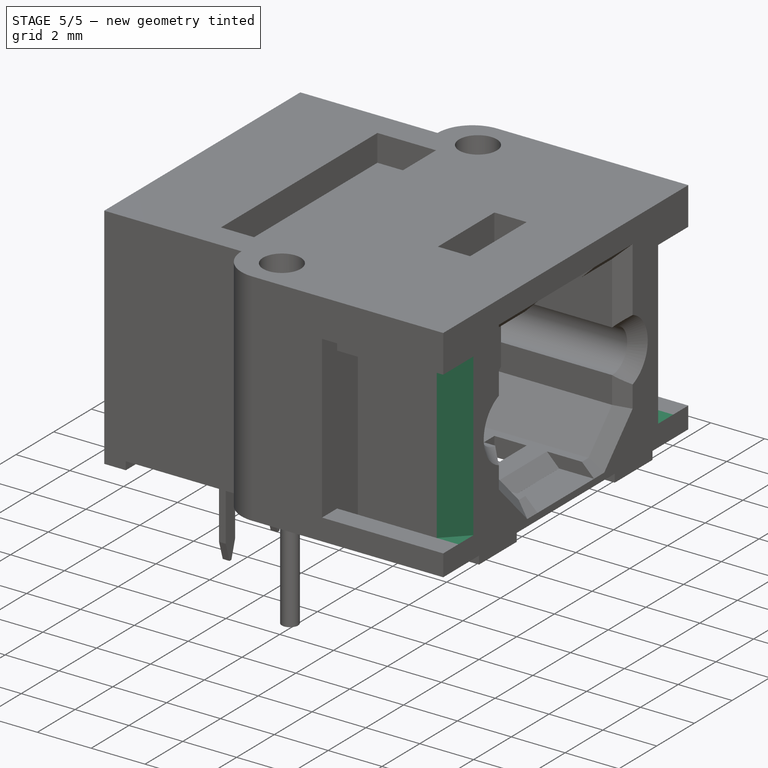
[diagram: stage 5 of 5 — iso view after this stage's code; geometry added in this stage tinted green]
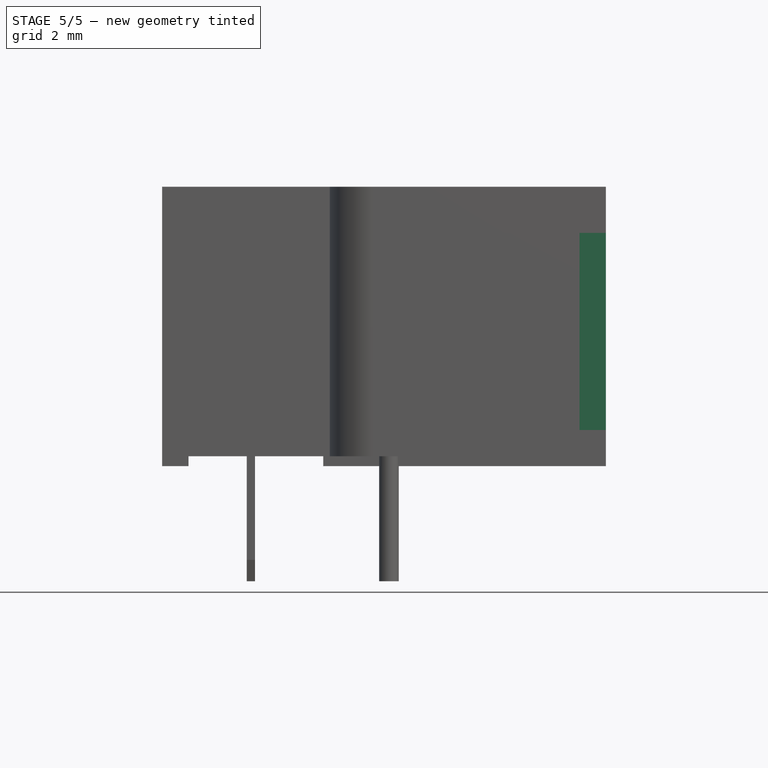
[diagram: stage 5 of 5 — front view after this stage's code; geometry added in this stage tinted green]
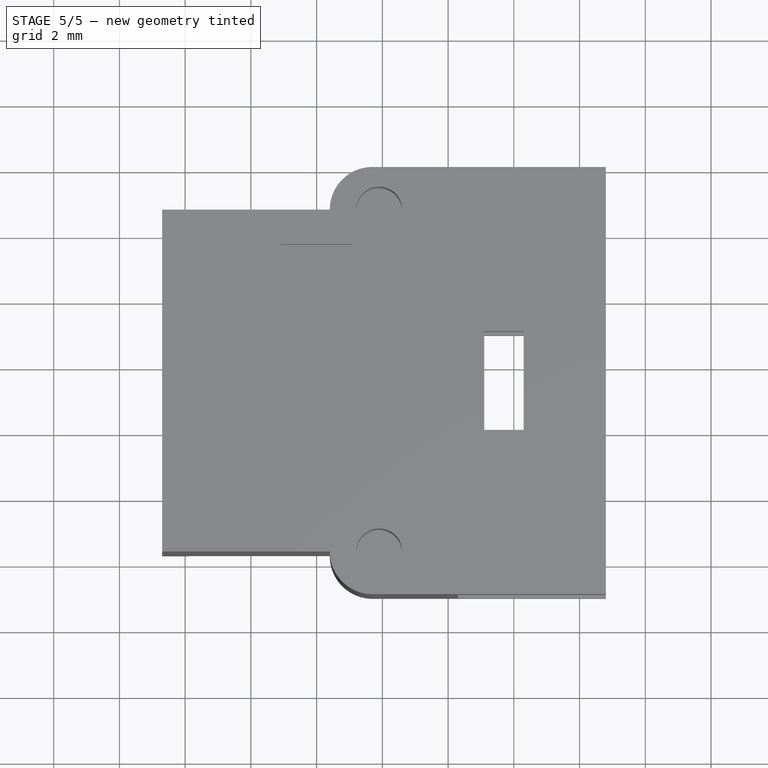
[diagram: stage 5 of 5 — top view after this stage's code; geometry added in this stage tinted green]
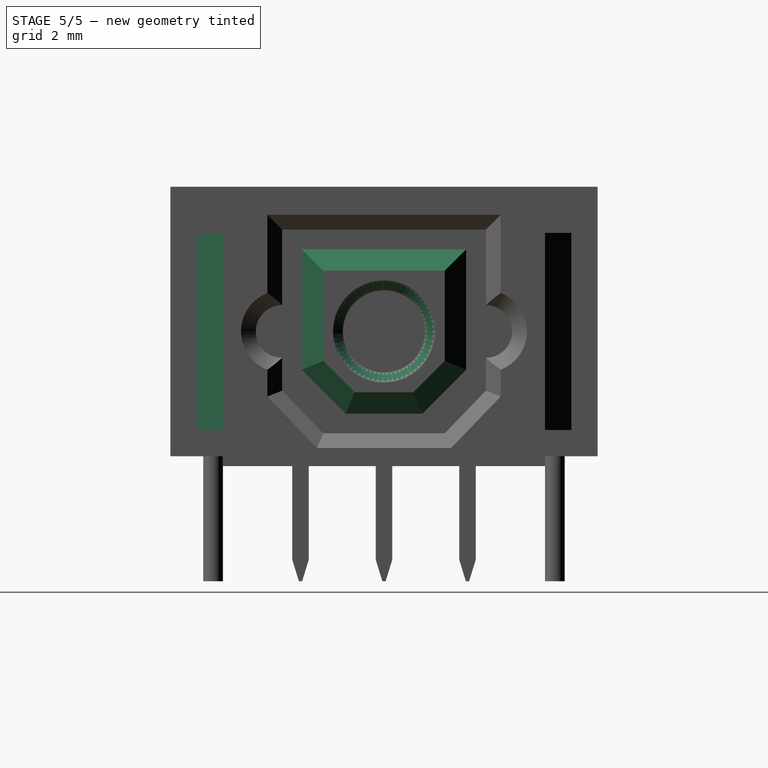
[diagram: stage 5 of 5 — right view after this stage's code; geometry added in this stage tinted green]
FEATURE [PartDesign::Chamfer] Chamfer001
  Angle = 45
  Base = -> Chamfer [Edge257]
  BaseFeature = -> Chamfer
  ChamferType = 0
  FlipDirection = false
  Size = 0.3
  Size2 = 1
  SupportTransform = false
  Suppressed = false
  UseAllEdges = false
FEATURE [PartDesign::Chamfer] Chamfer002
  Angle = 45
  Base = -> Chamfer001 [Edge2,Edge3,Edge5,Edge4,Edge6,Edge7]
  BaseFeature = -> Chamfer001
  ChamferType = 0
  FlipDirection = false
  Size = 0.25
  Size2 = 1
  SupportTransform = false
  Suppressed = false
  UseAllEdges = false
FEATURE [PartDesign::Chamfer] Chamfer003
  Angle = 45
  Base = -> Chamfer002 [Edge23,Edge25,Edge28,Edge32,Edge33,Edge29]
  BaseFeature = -> Chamfer002
  ChamferType = 0
  FlipDirection = false
  Size = 0.4
  Size2 = 1
  SupportTransform = false
  Suppressed = false
  UseAllEdges = false
FEATURE [PartDesign::Chamfer] Chamfer004
  Angle = 45
  Base = -> Chamfer003 [Edge169,Edge178]
  BaseFeature = -> Chamfer003
  ChamferType = 0
  FlipDirection = false
  Size = 0.8
  Size2 = 1
  SupportTransform = false
  Suppressed = false
  UseAllEdges = false
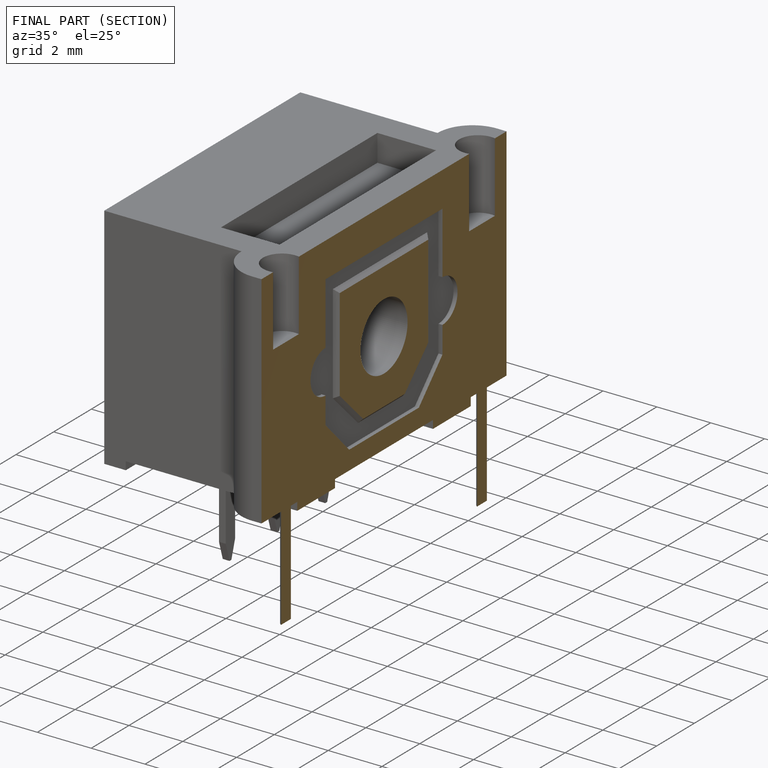
[diagram: finished part — half-section view (interior)]
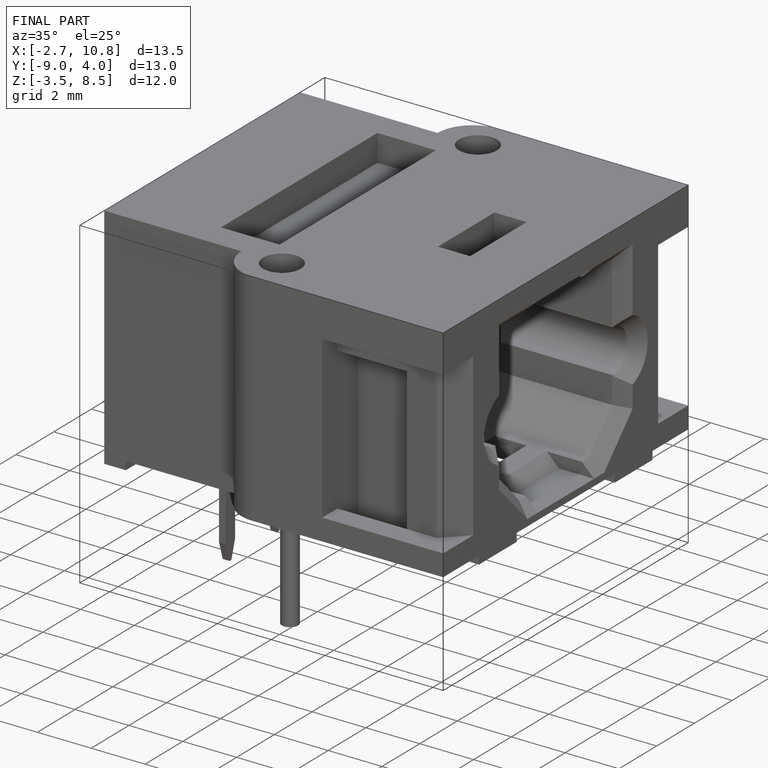
[diagram: finished part — iso view with bounding-box wireframe]
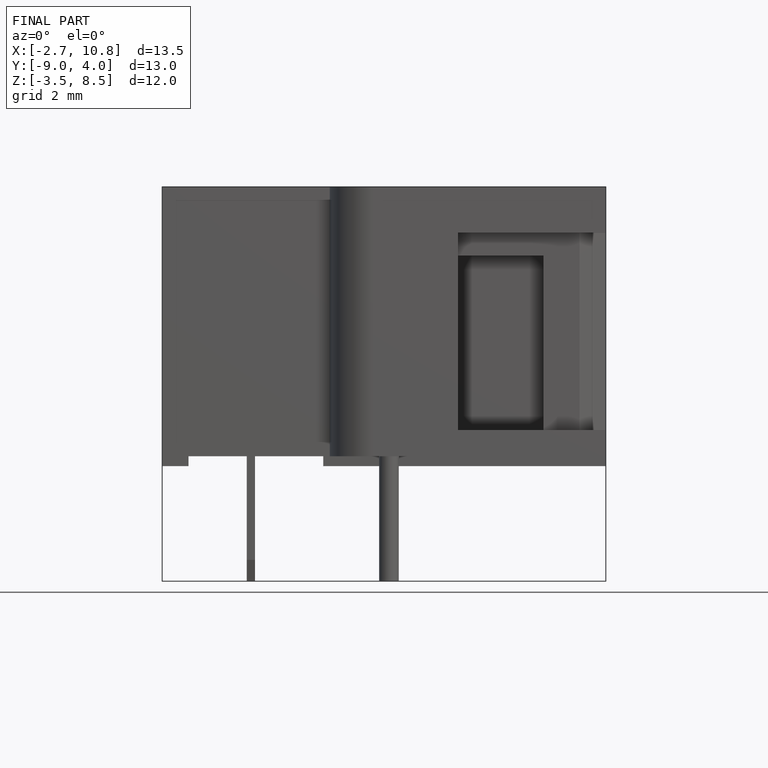
[diagram: finished part — front view with bounding-box wireframe]
